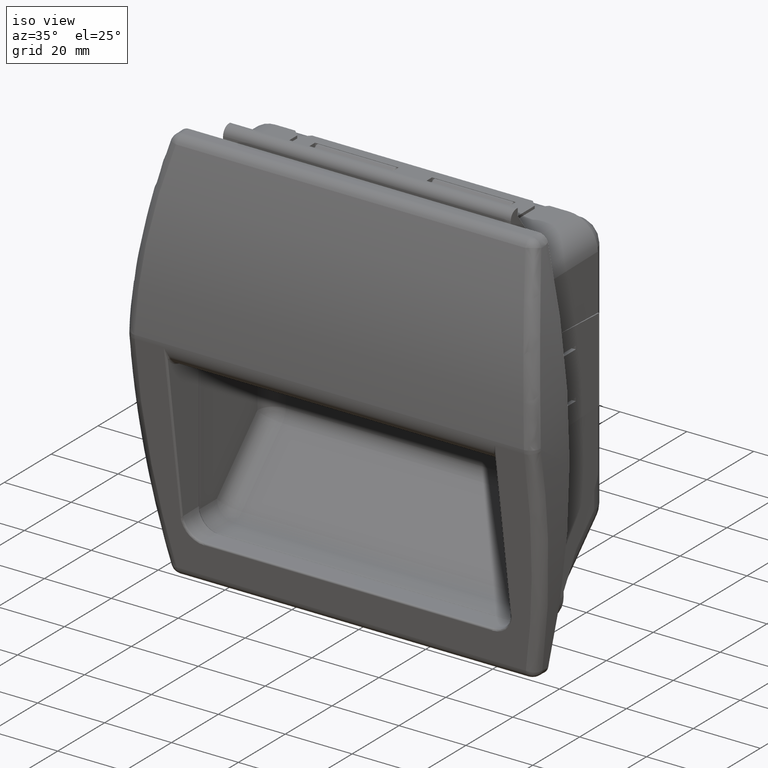
[diagram: clean part render]
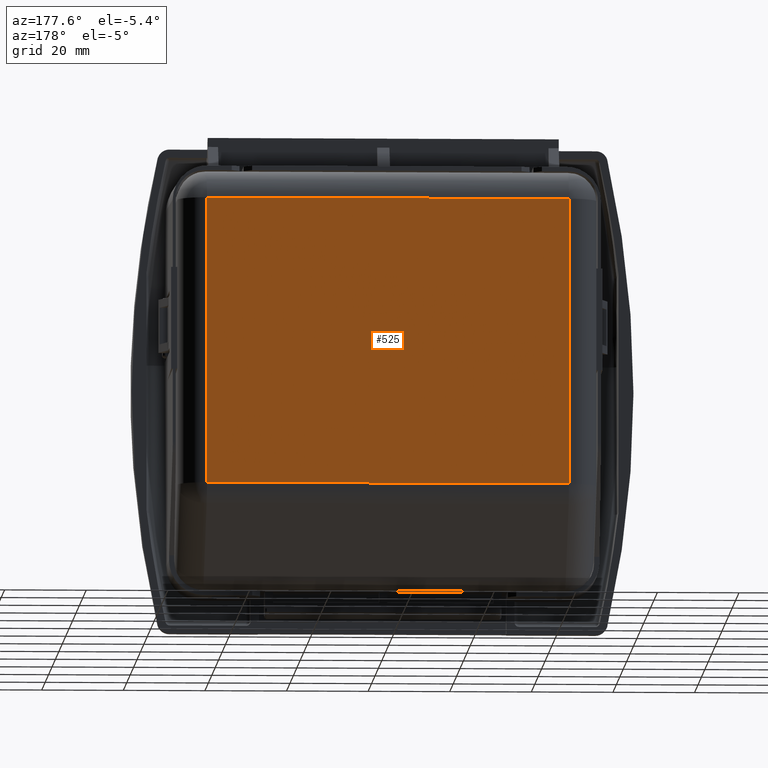
[diagram: tour spotlight — one face highlighted and labeled with its STEP entity id]
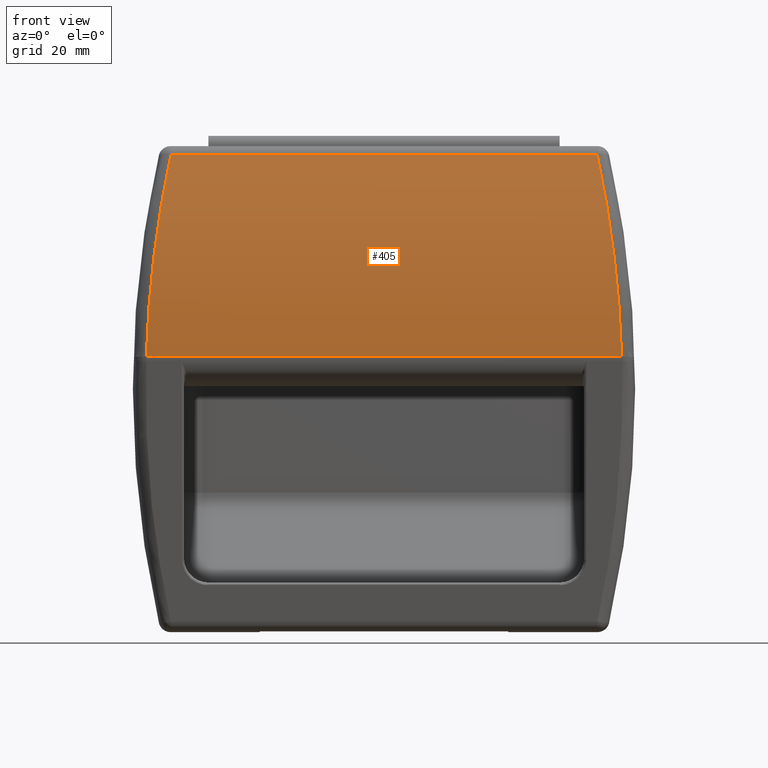
[diagram: tour spotlight — one face highlighted and labeled with its STEP entity id]
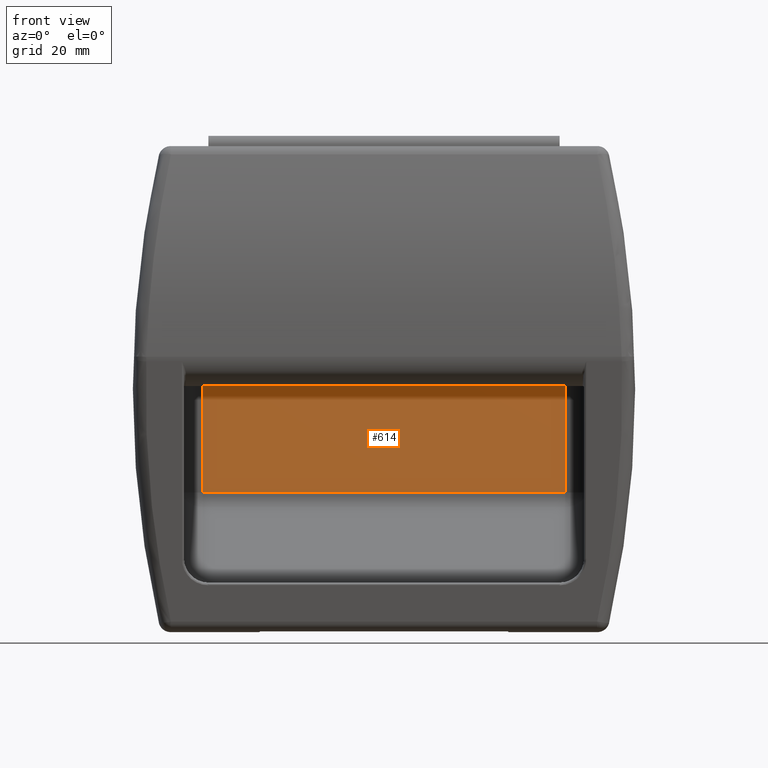
[diagram: tour spotlight — one face highlighted and labeled with its STEP entity id]
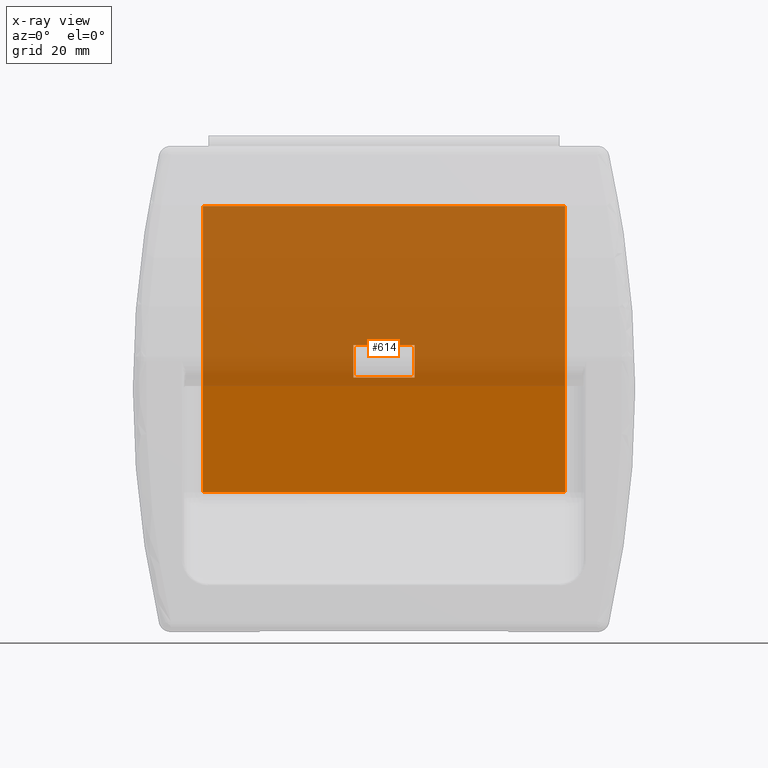
[diagram: x-ray of the same camera — body ghosted, this tour face saturated]
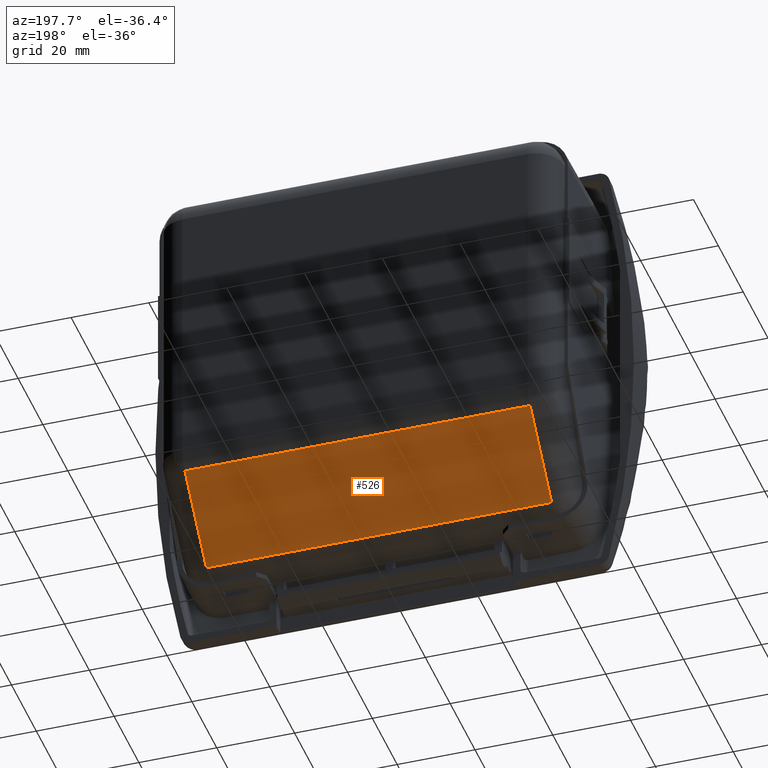
[diagram: tour spotlight — one face highlighted and labeled with its STEP entity id]
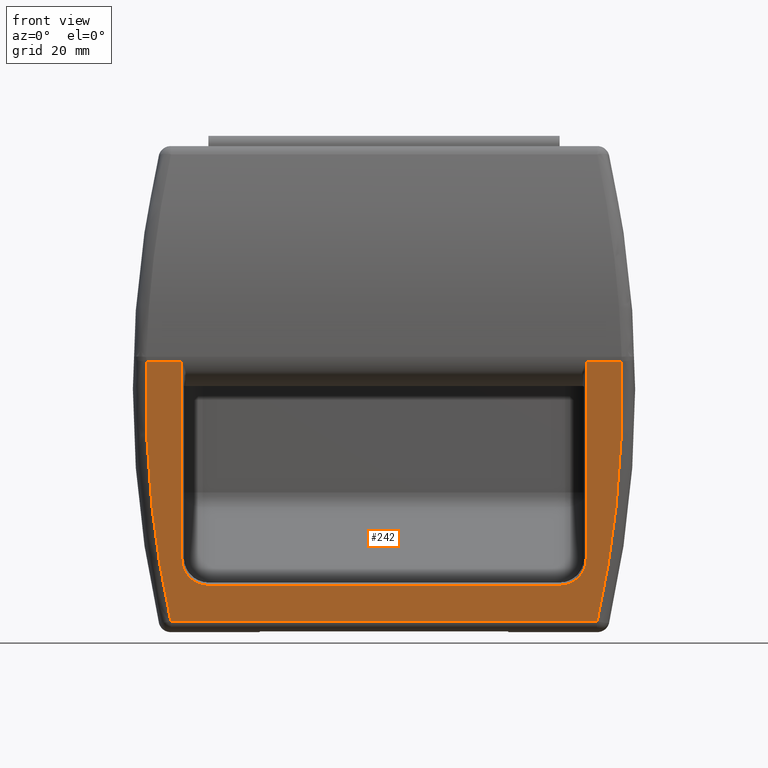
[diagram: tour spotlight — one face highlighted and labeled with its STEP entity id]
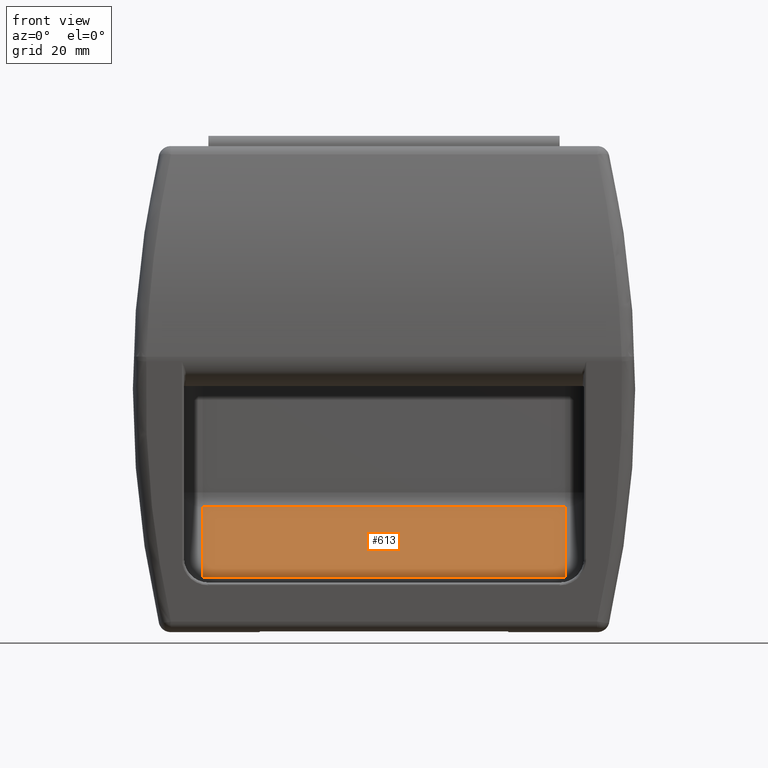
[diagram: tour spotlight — one face highlighted and labeled with its STEP entity id]
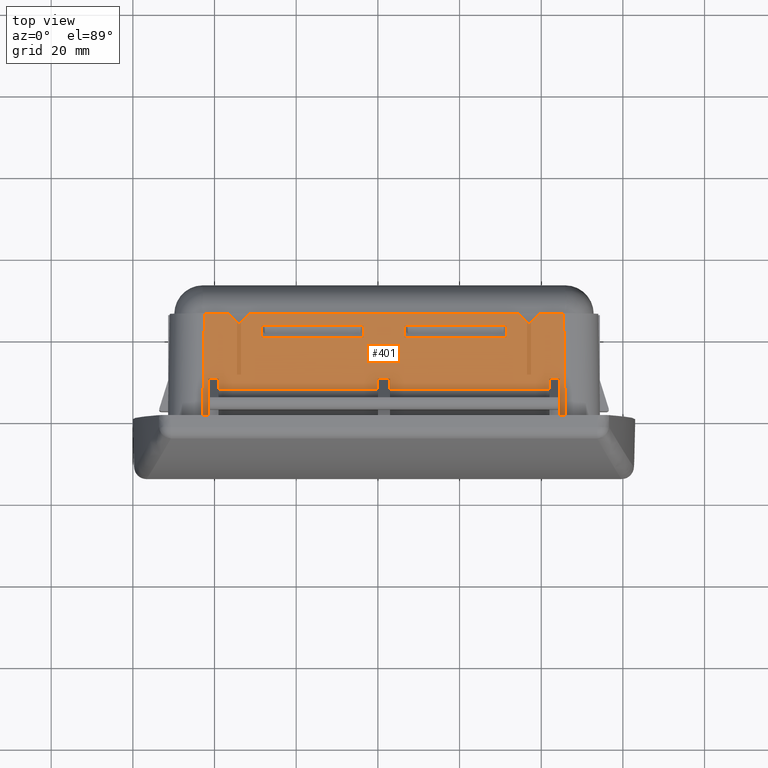
[diagram: tour spotlight — one face highlighted and labeled with its STEP entity id]
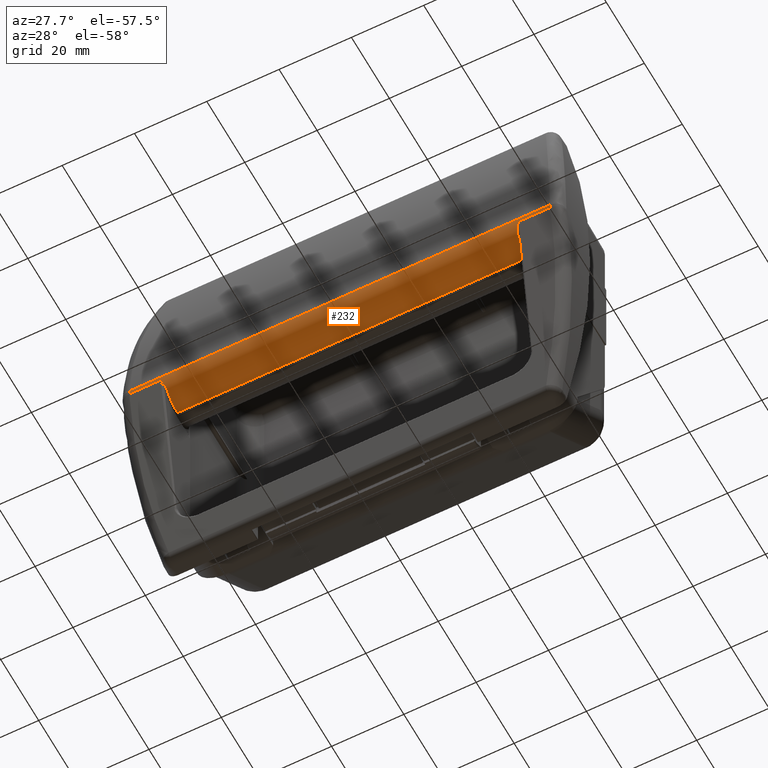
[diagram: tour spotlight — one face highlighted and labeled with its STEP entity id]
A machine part: a face-by-face anatomy tour. The part has 703 B-rep faces; the first image is the clean iso view, then the 8 largest visible faces are spotlighted one at a time (largest first), each with its STEP entity span.

Face 1 — auxiliary view, entity #525. In plain terms, the highlighted planar face has unit normal (0, 1, 0).
Definition (entity closure, byte-faithful):
#525=ADVANCED_FACE('',(#4624),#4623,.T.);
#4623=PLANE('',#11855);
#4624=FACE_OUTER_BOUND('',#11856,.T.);
#11852=CARTESIAN_POINT('',(-2.51720344491E+02,3.20000000000E+01,-3.23084886702E+01));
#11853=DIRECTION('',(0.00000000000E+00,1.00000000000E+00,0.00000000000E+00));
#11854=DIRECTION('',(0.00000000000E+00,0.00000000000E+00,1.00000000000E+00));
#11855=AXIS2_PLACEMENT_3D('',#11852,#11853,#11854);
#11856=EDGE_LOOP('',(#18280,#18281,#18282,#18283));
#18280=ORIENTED_EDGE('',*,*,#20889,.T.);
#18281=ORIENTED_EDGE('',*,*,#20927,.F.);
#18282=ORIENTED_EDGE('',*,*,#20895,.T.);
#18283=ORIENTED_EDGE('',*,*,#20899,.T.);
#20889=EDGE_CURVE('',#28354,#28347,#28355,.T.);
#20895=EDGE_CURVE('',#28392,#28393,#28394,.T.);
#20899=EDGE_CURVE('',#28393,#28354,#28420,.T.);
#20927=EDGE_CURVE('',#28392,#28347,#28603,.T.);
#28347=VERTEX_POINT('',#38044);
#28354=VERTEX_POINT('',#38049);
#28355=LINE('',#38050,#38051);
#28392=VERTEX_POINT('',#38072);
#28393=VERTEX_POINT('',#38073);
#28394=LINE('',#38074,#38075);
#28420=LINE('',#38090,#38091);
#28603=LINE('',#38200,#38201);
#38044=CARTESIAN_POINT('',(-1.54150344491E+02,3.20000000000E+01,4.47999999995E+01));
#38049=CARTESIAN_POINT('',(-2.42850344491E+02,3.20000000000E+01,4.47999999995E+01));
#38050=CARTESIAN_POINT('',(-2.42850344491E+02,3.20000000000E+01,4.47999999995E+01));
#38051=VECTOR('',#38052,8.87000000000E+01);
#38052=DIRECTION('',(1.00000000000E+00,0.00000000000E+00,0.00000000000E+00));
#38072=CARTESIAN_POINT('',(-1.54150344491E+02,3.20000000000E+01,-2.52986260639E+01));
#38073=CARTESIAN_POINT('',(-2.42850344491E+02,3.20000000000E+01,-2.52986260639E+01));
#38074=CARTESIAN_POINT('',(-1.54150344491E+02,3.20000000000E+01,-2.52986260639E+01));
#38075=VECTOR('',#38076,8.87000000000E+01);
#38076=DIRECTION('',(-1.00000000000E+00,0.00000000000E+00,0.00000000000E+00));
#38090=CARTESIAN_POINT('',(-2.42850344491E+02,3.20000000000E+01,-2.52986260639E+01));
#38091=VECTOR('',#38092,7.00986260634E+01);
#38092=DIRECTION('',(0.00000000000E+00,0.00000000000E+00,1.00000000000E+00));
#38200=CARTESIAN_POINT('',(-1.54150344491E+02,3.20000000000E+01,-2.52986260639E+01));
#38201=VECTOR('',#38202,7.00986260634E+01);
#38202=DIRECTION('',(0.00000000000E+00,0.00000000000E+00,1.00000000000E+00));

Face 2 — front view, entity #405. In plain terms, the highlighted cylindrical surface (partial cylindrical patch) has radius 155 mm, axis along (1, -0, 0).
Definition (entity closure, byte-faithful):
#405=ADVANCED_FACE('',(#3421),#3420,.T.);
#3420=CYLINDRICAL_SURFACE('',#10751,1.55000000000E+02);
#3421=FACE_OUTER_BOUND('',#10752,.T.);
#10748=CARTESIAN_POINT('',(-1.30309991273E+02,1.40175836261E+02,5.12569957722E+00));
#10749=DIRECTION('',(1.00000000000E+00,-2.71340391418E-14,4.72574873308E-16));
#10750=DIRECTION('',(2.71381483594E-14,9.99836847555E-01,-1.80631744447E-02));
#10751=AXIS2_PLACEMENT_3D('',#10748,#10749,#10750);
#10752=EDGE_LOOP('',(#17628,#17629,#17630,#17631));
#17628=ORIENTED_EDGE('',*,*,#20232,.T.);
#17629=ORIENTED_EDGE('',*,*,#20237,.T.);
#17630=ORIENTED_EDGE('',*,*,#20212,.T.);
#17631=ORIENTED_EDGE('',*,*,#20093,.F.);
#20093=EDGE_CURVE('',#23083,#23104,#23105,.T.);
#20212=EDGE_CURVE('',#23904,#23104,#23905,.T.);
#20232=EDGE_CURVE('',#23083,#24036,#24037,.T.);
#20237=EDGE_CURVE('',#24036,#23904,#24067,.T.);
#23083=VERTEX_POINT('',#34518);
#23104=VERTEX_POINT('',#34533);
#23105=(BOUNDED_CURVE() B_SPLINE_CURVE(3,(#34534,#34535,#34536,#34537,#34538,#34539,#34540,#34541),.UNSPECIFIED.,.F.,.F.) B_SPLINE_CURVE_WITH_KNOTS((4,2,2,4),(0.00000000000E+00,2.53678568101E-02,3.80517852151E-02,5.07357136201E-02),.UNSPECIFIED.) CURVE() GEOMETRIC_REPRESENTATION_ITEM() RATIONAL_B_SPLINE_CURVE((1.00000000000E+00,1.00000000000E+00,1.00000000000E+00,1.00000000000E+00,1.00000000000E+00,1.00000000000E+00,1.00000000000E+00,1.00000000000E+00)) REPRESENTATION_ITEM('') );
#23904=VERTEX_POINT('',#35204);
#23905=LINE('',#35205,#35206);
#24036=VERTEX_POINT('',#35298);
#24037=LINE('',#35299,#35300);
#24067=(BOUNDED_CURVE() B_SPLINE_CURVE(3,(#35319,#35320,#35321,#35322,#35323,#35324,#35325,#35326),.UNSPECIFIED.,.F.,.F.) B_SPLINE_CURVE_WITH_KNOTS((4,2,2,4),(0.00000000000E+00,2.53678568101E-02,3.80517852151E-02,5.07357136201E-02),.UNSPECIFIED.) CURVE() GEOMETRIC_REPRESENTATION_ITEM() RATIONAL_B_SPLINE_CURVE((1.00000000000E+00,1.00000000000E+00,1.00000000000E+00,1.00000000000E+00,1.00000000000E+00,1.00000000000E+00,1.00000000000E+00,1.00000000000E+00)) REPRESENTATION_ITEM('') );
#34518=CARTESIAN_POINT('',(-1.46314614773E+02,-5.71468372083E+00,5.74798415271E+01));
#34533=CARTESIAN_POINT('',(-1.40309991273E+02,-1.47988571204E+01,7.92648718228E+00));
#34534=CARTESIAN_POINT('',(-1.46314614773E+02,-5.71468372083E+00,5.74798415271E+01));
#34535=CARTESIAN_POINT('',(-1.44612936774E+02,-8.56037819157E+00,4.95500038755E+01));
#34536=CARTESIAN_POINT('',(-1.43242115937E+02,-1.07395444575E+01,4.14578859791E+01));
#34537=CARTESIAN_POINT('',(-1.41724674213E+02,-1.30205417211E+01,2.90733455913E+01));
#34538=CARTESIAN_POINT('',(-1.41308745328E+02,-1.36153939378E+01,2.49039376457E+01));
#34539=CARTESIAN_POINT('',(-1.40665395191E+02,-1.44656838514E+01,1.64800575288E+01));
#34540=CARTESIAN_POINT('',(-1.40437955353E+02,-1.47211612893E+01,1.22255948950E+01));
#34541=CARTESIAN_POINT('',(-1.40309991273E+02,-1.47988571204E+01,7.92648718228E+00));
#35204=CARTESIAN_POINT('',(-2.56690697709E+02,-1.47988571204E+01,7.92648718228E+00));
#35205=CARTESIAN_POINT('',(-2.56690697709E+02,-1.47988571204E+01,7.92648718228E+00));
#35206=VECTOR('',#35207,1.16380706436E+02);
#35207=DIRECTION('',(1.00000000000E+00,0.00000000000E+00,0.00000000000E+00));
#35298=CARTESIAN_POINT('',(-2.50686074209E+02,-5.71468372083E+00,5.74798415271E+01));
#35299=CARTESIAN_POINT('',(-1.46314614773E+02,-5.71468372083E+00,5.74798415271E+01));
#35300=VECTOR('',#35301,1.04371459436E+02);
#35301=DIRECTION('',(-1.00000000000E+00,0.00000000000E+00,0.00000000000E+00));
#35319=CARTESIAN_POINT('',(-2.50686074209E+02,-5.71468372083E+00,5.74798415271E+01));
#35320=CARTESIAN_POINT('',(-2.52387752208E+02,-8.56037819157E+00,4.95500038755E+01));
#35321=CARTESIAN_POINT('',(-2.53758573045E+02,-1.07395444575E+01,4.14578859791E+01));
#35322=CARTESIAN_POINT('',(-2.55276014769E+02,-1.30205417211E+01,2.90733455913E+01));
#35323=CARTESIAN_POINT('',(-2.55691943654E+02,-1.36153939378E+01,2.49039376457E+01));
#35324=CARTESIAN_POINT('',(-2.56335293791E+02,-1.44656838514E+01,1.64800575288E+01));
#35325=CARTESIAN_POINT('',(-2.56562733629E+02,-1.47211612893E+01,1.22255948950E+01));
#35326=CARTESIAN_POINT('',(-2.56690697709E+02,-1.47988571204E+01,7.92648718228E+00));

Face 3 — front view, entity #614. An x-ray twin of the same camera follows (body ghosted, this face saturated) — the face is partly hidden behind the body. In plain terms, the highlighted planar face has unit normal (0, -1, 0).
Definition (entity closure, byte-faithful):
#614=ADVANCED_FACE('',(#5518,#5519),#5517,.T.);
#5517=PLANE('',#12428);
#5518=FACE_OUTER_BOUND('',#12429,.T.);
#5519=FACE_BOUND('',#12430,.T.);
#12425=CARTESIAN_POINT('',(-2.51720344491E+02,3.00000000000E+01,-3.23084886702E+01));
#12426=DIRECTION('',(0.00000000000E+00,-1.00000000000E+00,0.00000000000E+00));
#12427=DIRECTION('',(1.00000000000E+00,0.00000000000E+00,0.00000000000E+00));
#12428=AXIS2_PLACEMENT_3D('',#12425,#12426,#12427);
#12429=EDGE_LOOP('',(#18697,#18698,#18699,#18700));
#12430=EDGE_LOOP('',(#18701,#18702,#18703,#18704));
#18697=ORIENTED_EDGE('',*,*,#20774,.F.);
#18698=ORIENTED_EDGE('',*,*,#21084,.T.);
#18699=ORIENTED_EDGE('',*,*,#21122,.F.);
#18700=ORIENTED_EDGE('',*,*,#20964,.F.);
#18701=ORIENTED_EDGE('',*,*,#21123,.T.);
#18702=ORIENTED_EDGE('',*,*,#20984,.F.);
#18703=ORIENTED_EDGE('',*,*,#21124,.T.);
#18704=ORIENTED_EDGE('',*,*,#21125,.T.);
#20774=EDGE_CURVE('',#27565,#27572,#27573,.T.);
#20964=EDGE_CURVE('',#27572,#27524,#28850,.T.);
#20984=EDGE_CURVE('',#28981,#28982,#28983,.T.);
#21084=EDGE_CURVE('',#27565,#27922,#29628,.T.);
#21122=EDGE_CURVE('',#27524,#27922,#29876,.T.);
#21123=EDGE_CURVE('',#29882,#28982,#29883,.T.);
#21124=EDGE_CURVE('',#28981,#29889,#29890,.T.);
#21125=EDGE_CURVE('',#29889,#29882,#29896,.T.);
#27524=VERTEX_POINT('',#37516);
#27565=VERTEX_POINT('',#37542);
#27572=VERTEX_POINT('',#37547);
#27573=LINE('',#37548,#37549);
#27922=VERTEX_POINT('',#37780);
#28850=LINE('',#38343,#38344);
#28981=VERTEX_POINT('',#38447);
#28982=VERTEX_POINT('',#38448);
#28983=LINE('',#38449,#38450);
#29628=LINE('',#38825,#38826);
#29876=LINE('',#38978,#38979);
#29882=VERTEX_POINT('',#38981);
#29883=LINE('',#38982,#38983);
#29889=VERTEX_POINT('',#38985);
#29890=LINE('',#38986,#38987);
#29896=LINE('',#38989,#38990);
#37516=CARTESIAN_POINT('',(-2.42850344491E+02,3.00000000000E+01,4.47999999995E+01));
#37542=CARTESIAN_POINT('',(-1.54150344491E+02,3.00000000000E+01,-2.52986260639E+01));
#37547=CARTESIAN_POINT('',(-2.42850344491E+02,3.00000000000E+01,-2.52986260639E+01));
#37548=CARTESIAN_POINT('',(-1.54150344491E+02,3.00000000000E+01,-2.52986260639E+01));
#37549=VECTOR('',#37550,8.87000000000E+01);
#37550=DIRECTION('',(-1.00000000000E+00,0.00000000000E+00,0.00000000000E+00));
#37780=CARTESIAN_POINT('',(-1.54150344491E+02,3.00000000000E+01,4.47999999995E+01));
#38343=CARTESIAN_POINT('',(-2.42850344491E+02,3.00000000000E+01,-2.52986260639E+01));
#38344=VECTOR('',#38345,7.00986260634E+01);
#38345=DIRECTION('',(0.00000000000E+00,0.00000000000E+00,1.00000000000E+00));
#38447=CARTESIAN_POINT('',(-1.91002273572E+02,3.00000000000E+01,2.79844390646E+00));
#38448=CARTESIAN_POINT('',(-1.91002273572E+02,3.00000000000E+01,1.07983716437E+01));
#38449=CARTESIAN_POINT('',(-1.91002273572E+02,3.00000000000E+01,2.79844390646E+00));
#38450=VECTOR('',#38451,7.99992773723E+00);
#38451=DIRECTION('',(0.00000000000E+00,0.00000000000E+00,1.00000000000E+00));
#38825=CARTESIAN_POINT('',(-1.54150344491E+02,3.00000000000E+01,-2.52986260639E+01));
#38826=VECTOR('',#38827,7.00986260634E+01);
#38827=DIRECTION('',(0.00000000000E+00,0.00000000000E+00,1.00000000000E+00));
#38978=CARTESIAN_POINT('',(-2.42850344491E+02,3.00000000000E+01,4.47999999995E+01));
#38979=VECTOR('',#38980,8.87000000000E+01);
#38980=DIRECTION('',(1.00000000000E+00,0.00000000000E+00,0.00000000000E+00));
#38981=CARTESIAN_POINT('',(-2.05998415409E+02,3.00000000000E+01,1.07983716437E+01));
#38982=CARTESIAN_POINT('',(-2.05998415409E+02,3.00000000000E+01,1.07983716437E+01));
#38983=VECTOR('',#38984,1.49961418368E+01);
#38984=DIRECTION('',(1.00000000000E+00,0.00000000000E+00,0.00000000000E+00));
#38985=CARTESIAN_POINT('',(-2.05998415409E+02,3.00000000000E+01,2.79844390646E+00));
#38986=CARTESIAN_POINT('',(-1.91002273572E+02,3.00000000000E+01,2.79844390646E+00));
#38987=VECTOR('',#38988,1.49961418368E+01);
#38988=DIRECTION('',(-1.00000000000E+00,0.00000000000E+00,0.00000000000E+00));
#38989=CARTESIAN_POINT('',(-2.05998415409E+02,3.00000000000E+01,2.79844390646E+00));
#38990=VECTOR('',#38991,7.99992773723E+00);
#38991=DIRECTION('',(0.00000000000E+00,0.00000000000E+00,1.00000000000E+00));

Face 4 — auxiliary view, entity #526. In plain terms, the highlighted planar face has unit normal (0, 0.7071, -0.7071).
Definition (entity closure, byte-faithful):
#526=ADVANCED_FACE('',(#4634),#4633,.T.);
#4633=PLANE('',#11860);
#4634=FACE_OUTER_BOUND('',#11861,.T.);
#11857=CARTESIAN_POINT('',(-2.51720344491E+02,1.09203030380E+01,-4.92778179625E+01));
#11858=DIRECTION('',(0.00000000000E+00,7.07106781187E-01,-7.07106781187E-01));
#11859=DIRECTION('',(0.00000000000E+00,7.07106781187E-01,7.07106781187E-01));
#11860=AXIS2_PLACEMENT_3D('',#11857,#11858,#11859);
#11861=EDGE_LOOP('',(#18284,#18285,#18286,#18287));
#18284=ORIENTED_EDGE('',*,*,#20897,.T.);
#18285=ORIENTED_EDGE('',*,*,#20928,.F.);
#18286=ORIENTED_EDGE('',*,*,#20903,.T.);
#18287=ORIENTED_EDGE('',*,*,#20907,.T.);
#20897=EDGE_CURVE('',#28407,#28400,#28408,.T.);
#20903=EDGE_CURVE('',#28445,#28446,#28447,.T.);
#20907=EDGE_CURVE('',#28446,#28407,#28473,.T.);
#20928=EDGE_CURVE('',#28445,#28400,#28609,.T.);
#28400=VERTEX_POINT('',#38077);
#28407=VERTEX_POINT('',#38082);
#28408=LINE('',#38083,#38084);
#28445=VERTEX_POINT('',#38105);
#28446=VERTEX_POINT('',#38106);
#28447=LINE('',#38107,#38108);
#28473=LINE('',#38123,#38124);
#28609=LINE('',#38203,#38204);
#38077=CARTESIAN_POINT('',(-1.54150344491E+02,2.99497474683E+01,-3.02483735322E+01));
#38082=CARTESIAN_POINT('',(-2.42850344491E+02,2.99497474683E+01,-3.02483735322E+01));
#38083=CARTESIAN_POINT('',(-2.42850344491E+02,2.99497474683E+01,-3.02483735322E+01));
#38084=VECTOR('',#38085,8.87000000000E+01);
#38085=DIRECTION('',(1.00000000000E+00,0.00000000000E+00,0.00000000000E+00));
#38105=CARTESIAN_POINT('',(-1.54150344491E+02,1.26502525317E+01,-4.75478684688E+01));
#38106=CARTESIAN_POINT('',(-2.42850344491E+02,1.26502525317E+01,-4.75478684688E+01));
#38107=CARTESIAN_POINT('',(-1.54150344491E+02,1.26502525317E+01,-4.75478684688E+01));
#38108=VECTOR('',#38109,8.87000000000E+01);
#38109=DIRECTION('',(-1.00000000000E+00,0.00000000000E+00,0.00000000000E+00));
#38123=CARTESIAN_POINT('',(-2.42850344491E+02,1.26502525317E+01,-4.75478684688E+01));
#38124=VECTOR('',#38125,2.44651803616E+01);
#38125=DIRECTION('',(0.00000000000E+00,7.07106781187E-01,7.07106781187E-01));
#38203=CARTESIAN_POINT('',(-1.54150344491E+02,1.26502525317E+01,-4.75478684688E+01));
#38204=VECTOR('',#38205,2.44651803616E+01);
#38205=DIRECTION('',(0.00000000000E+00,7.07106781187E-01,7.07106781187E-01));

Face 5 — front view, entity #242. In plain terms, the highlighted planar face has unit normal (0, -0.9894, -0.1452).
Definition (entity closure, byte-faithful):
#242=ADVANCED_FACE('',(#1783),#1782,.T.);
#1782=PLANE('',#9738);
#1783=FACE_OUTER_BOUND('',#9739,.T.);
#9735=CARTESIAN_POINT('',(-2.67699424628E+02,-1.56604692049E+01,1.31531344708E+01));
#9736=DIRECTION('',(0.00000000000E+00,-9.89404774411E-01,-1.45183306107E-01));
#9737=DIRECTION('',(0.00000000000E+00,1.45183306107E-01,-9.89404774411E-01));
#9738=AXIS2_PLACEMENT_3D('',#9735,#9736,#9737);
#9739=EDGE_LOOP('',(#16738,#16739,#16740,#16741,#16742,#16743,#16744,#16745,#16746,#16747));
#16738=ORIENTED_EDGE('',*,*,#20230,.T.);
#16739=ORIENTED_EDGE('',*,*,#20083,.F.);
#16740=ORIENTED_EDGE('',*,*,#20210,.T.);
#16741=ORIENTED_EDGE('',*,*,#20241,.F.);
#16742=ORIENTED_EDGE('',*,*,#20086,.F.);
#16743=ORIENTED_EDGE('',*,*,#20242,.T.);
#16744=ORIENTED_EDGE('',*,*,#20238,.T.);
#16745=ORIENTED_EDGE('',*,*,#20221,.T.);
#16746=ORIENTED_EDGE('',*,*,#20208,.F.);
#16747=ORIENTED_EDGE('',*,*,#20219,.T.);
#20083=EDGE_CURVE('',#23027,#23035,#23036,.T.);
#20086=EDGE_CURVE('',#23055,#23056,#23057,.T.);
#20208=EDGE_CURVE('',#23879,#23866,#23880,.T.);
#20210=EDGE_CURVE('',#23027,#23014,#23892,.T.);
#20219=EDGE_CURVE('',#23879,#23944,#23951,.T.);
#20221=EDGE_CURVE('',#23964,#23866,#23965,.T.);
#20230=EDGE_CURVE('',#23944,#23035,#24024,.T.);
#20238=EDGE_CURVE('',#24073,#23964,#24074,.T.);
#20241=EDGE_CURVE('',#23056,#23014,#24093,.T.);
#20242=EDGE_CURVE('',#23055,#24073,#24099,.T.);
#23014=VERTEX_POINT('',#34454);
#23027=VERTEX_POINT('',#34475);
#23035=VERTEX_POINT('',#34481);
#23036=(BOUNDED_CURVE() B_SPLINE_CURVE(2,(#34482,#34483,#34484),.UNSPECIFIED.,.F.,.F.) B_SPLINE_CURVE_WITH_KNOTS((3,3),(-1.60147133436E+00,-1.35171919867E+00),.UNSPECIFIED.) CURVE() GEOMETRIC_REPRESENTATION_ITEM() RATIONAL_B_SPLINE_CURVE((1.00000000000E+00,9.92213110818E-01,1.00000000000E+00)) REPRESENTATION_ITEM('') );
#23055=VERTEX_POINT('',#34500);
#23056=VERTEX_POINT('',#34501);
#23057=(BOUNDED_CURVE() B_SPLINE_CURVE(2,(#34502,#34503,#34504),.UNSPECIFIED.,.F.,.F.) B_SPLINE_CURVE_WITH_KNOTS((3,3),(-3.14159265359E+00,-1.57079632679E+00),.UNSPECIFIED.) CURVE() GEOMETRIC_REPRESENTATION_ITEM() RATIONAL_B_SPLINE_CURVE((1.00000000000E+00,7.07106781187E-01,1.00000000000E+00)) REPRESENTATION_ITEM('') );
#23866=VERTEX_POINT('',#35169);
#23879=VERTEX_POINT('',#35190);
#23880=LINE('',#35191,#35192);
#23892=LINE('',#35197,#35198);
#23944=VERTEX_POINT('',#35237);
#23951=(BOUNDED_CURVE() B_SPLINE_CURVE(2,(#35242,#35243,#35244),.UNSPECIFIED.,.F.,.F.) B_SPLINE_CURVE_WITH_KNOTS((3,3),(-1.60147133436E+00,-1.35171919867E+00),.UNSPECIFIED.) CURVE() GEOMETRIC_REPRESENTATION_ITEM() RATIONAL_B_SPLINE_CURVE((1.00000000000E+00,9.92213110818E-01,1.00000000000E+00)) REPRESENTATION_ITEM('') );
#23964=VERTEX_POINT('',#35249);
#23965=LINE('',#35250,#35251);
#24024=LINE('',#35292,#35293);
#24073=VERTEX_POINT('',#35327);
#24074=(BOUNDED_CURVE() B_SPLINE_CURVE(2,(#35328,#35329,#35330),.UNSPECIFIED.,.F.,.F.) B_SPLINE_CURVE_WITH_KNOTS((3,3),(-3.14159265359E+00,-1.57079632679E+00),.UNSPECIFIED.) CURVE() GEOMETRIC_REPRESENTATION_ITEM() RATIONAL_B_SPLINE_CURVE((1.00000000000E+00,7.07106781187E-01,1.00000000000E+00)) REPRESENTATION_ITEM('') );
#24093=LINE('',#35339,#35340);
#24099=LINE('',#35342,#35343);
#34454=CARTESIAN_POINT('',(-1.49000344491E+02,-1.47258334208E+01,6.78371685737E+00));
#34475=CARTESIAN_POINT('',(-1.40290067175E+02,-1.47258334208E+01,6.78371685737E+00));
#34481=CARTESIAN_POINT('',(-1.46307917439E+02,-5.37947558005E+00,-5.69104592773E+01));
#34482=CARTESIAN_POINT('',(-1.40290067175E+02,-1.47258334208E+01,6.78371685737E+00));
#34483=CARTESIAN_POINT('',(-1.39301264354E+02,-9.99723017459E+00,-2.54410805627E+01));
#34484=CARTESIAN_POINT('',(-1.46307917439E+02,-5.37947558005E+00,-5.69104592773E+01));
#34500=CARTESIAN_POINT('',(-1.55500344491E+02,-6.67798913457E+00,-4.80612634232E+01));
#34501=CARTESIAN_POINT('',(-1.49000344491E+02,-7.62949449922E+00,-4.15768818788E+01));
#34502=CARTESIAN_POINT('',(-1.55500344491E+02,-6.67798913457E+00,-4.80612634232E+01));
#34503=CARTESIAN_POINT('',(-1.49000344491E+02,-6.67798913457E+00,-4.80612634232E+01));
#34504=CARTESIAN_POINT('',(-1.49000344491E+02,-7.62949449922E+00,-4.15768818788E+01));
#35169=CARTESIAN_POINT('',(-2.48000344491E+02,-1.47258334208E+01,6.78371685737E+00));
#35190=CARTESIAN_POINT('',(-2.56710621807E+02,-1.47258334208E+01,6.78371685737E+00));
#35191=CARTESIAN_POINT('',(-2.56710621807E+02,-1.47258334208E+01,6.78371685737E+00));
#35192=VECTOR('',#35193,8.71027731590E+00);
#35193=DIRECTION('',(1.00000000000E+00,0.00000000000E+00,0.00000000000E+00));
#35197=CARTESIAN_POINT('',(-1.40290067175E+02,-1.47258334208E+01,6.78371685737E+00));
#35198=VECTOR('',#35199,8.71027731590E+00);
#35199=DIRECTION('',(-1.00000000000E+00,0.00000000000E+00,0.00000000000E+00));
#35237=CARTESIAN_POINT('',(-2.50692771543E+02,-5.37947558005E+00,-5.69104592773E+01));
#35242=CARTESIAN_POINT('',(-2.56710621807E+02,-1.47258334208E+01,6.78371685737E+00));
#35243=CARTESIAN_POINT('',(-2.57699424628E+02,-9.99723017459E+00,-2.54410805627E+01));
#35244=CARTESIAN_POINT('',(-2.50692771543E+02,-5.37947558005E+00,-5.69104592773E+01));
#35249=CARTESIAN_POINT('',(-2.48000344491E+02,-7.62949449922E+00,-4.15768818788E+01));
#35250=CARTESIAN_POINT('',(-2.48000344491E+02,-7.62949449922E+00,-4.15768818788E+01));
#35251=VECTOR('',#35252,4.88784772289E+01);
#35252=DIRECTION('',(0.00000000000E+00,-1.45183306107E-01,9.89404774411E-01));
#35292=CARTESIAN_POINT('',(-2.50692771543E+02,-5.37947558005E+00,-5.69104592773E+01));
#35293=VECTOR('',#35294,1.04384854105E+02);
#35294=DIRECTION('',(1.00000000000E+00,0.00000000000E+00,0.00000000000E+00));
#35327=CARTESIAN_POINT('',(-2.41500344491E+02,-6.67798913457E+00,-4.80612634232E+01));
#35328=CARTESIAN_POINT('',(-2.41500344491E+02,-6.67798913457E+00,-4.80612634232E+01));
#35329=CARTESIAN_POINT('',(-2.48000344491E+02,-6.67798913457E+00,-4.80612634232E+01));
#35330=CARTESIAN_POINT('',(-2.48000344491E+02,-7.62949449922E+00,-4.15768818788E+01));
#35339=CARTESIAN_POINT('',(-1.49000344491E+02,-7.62949449922E+00,-4.15768818788E+01));
#35340=VECTOR('',#35341,4.88784772289E+01);
#35341=DIRECTION('',(0.00000000000E+00,-1.45183306107E-01,9.89404774411E-01));
#35342=CARTESIAN_POINT('',(-1.55500344491E+02,-6.67798913457E+00,-4.80612634232E+01));
#35343=VECTOR('',#35344,8.59999999994E+01);
#35344=DIRECTION('',(-1.00000000000E+00,0.00000000000E+00,0.00000000000E+00));

Face 6 — front view, entity #613. In plain terms, the highlighted planar face has unit normal (0, -0.7071, 0.7071).
Definition (entity closure, byte-faithful):
#613=ADVANCED_FACE('',(#5508),#5507,.T.);
#5507=PLANE('',#12423);
#5508=FACE_OUTER_BOUND('',#12424,.T.);
#12420=CARTESIAN_POINT('',(-2.51720344491E+02,9.50608947564E+00,-4.78636044001E+01));
#12421=DIRECTION('',(0.00000000000E+00,-7.07106781187E-01,7.07106781187E-01));
#12422=DIRECTION('',(1.00000000000E+00,0.00000000000E+00,0.00000000000E+00));
#12423=AXIS2_PLACEMENT_3D('',#12420,#12421,#12422);
#12424=EDGE_LOOP('',(#18693,#18694,#18695,#18696));
#18693=ORIENTED_EDGE('',*,*,#20967,.F.);
#18694=ORIENTED_EDGE('',*,*,#21081,.T.);
#18695=ORIENTED_EDGE('',*,*,#20772,.F.);
#18696=ORIENTED_EDGE('',*,*,#20959,.F.);
#20772=EDGE_CURVE('',#27557,#27558,#27559,.T.);
#20959=EDGE_CURVE('',#28793,#27557,#28819,.T.);
#20967=EDGE_CURVE('',#28863,#28793,#28870,.T.);
#21081=EDGE_CURVE('',#28863,#27558,#29610,.T.);
#27557=VERTEX_POINT('',#37537);
#27558=VERTEX_POINT('',#37538);
#27559=LINE('',#37539,#37540);
#28793=VERTEX_POINT('',#38307);
#28819=LINE('',#38324,#38325);
#28863=VERTEX_POINT('',#38350);
#28870=LINE('',#38355,#38356);
#29610=LINE('',#38815,#38816);
#37537=CARTESIAN_POINT('',(-2.42850344491E+02,2.85355339059E+01,-2.88341599698E+01));
#37538=CARTESIAN_POINT('',(-1.54150344491E+02,2.85355339059E+01,-2.88341599698E+01));
#37539=CARTESIAN_POINT('',(-2.42850344491E+02,2.85355339059E+01,-2.88341599698E+01));
#37540=VECTOR('',#37541,8.87000000000E+01);
#37541=DIRECTION('',(1.00000000000E+00,0.00000000000E+00,0.00000000000E+00));
#38307=CARTESIAN_POINT('',(-2.42850344491E+02,1.12360389693E+01,-4.61336549064E+01));
#38324=CARTESIAN_POINT('',(-2.42850344491E+02,1.12360389693E+01,-4.61336549064E+01));
#38325=VECTOR('',#38326,2.44651803616E+01);
#38326=DIRECTION('',(0.00000000000E+00,7.07106781187E-01,7.07106781187E-01));
#38350=CARTESIAN_POINT('',(-1.54150344491E+02,1.12360389693E+01,-4.61336549064E+01));
#38355=CARTESIAN_POINT('',(-1.54150344491E+02,1.12360389693E+01,-4.61336549064E+01));
#38356=VECTOR('',#38357,8.87000000000E+01);
#38357=DIRECTION('',(-1.00000000000E+00,0.00000000000E+00,0.00000000000E+00));
#38815=CARTESIAN_POINT('',(-1.54150344491E+02,1.12360389693E+01,-4.61336549064E+01));
#38816=VECTOR('',#38817,2.44651803616E+01);
#38817=DIRECTION('',(0.00000000000E+00,7.07106781187E-01,7.07106781187E-01));

Face 7 — top view, entity #401. In plain terms, the highlighted planar face has unit normal (0, 0, 1).
Definition (entity closure, byte-faithful):
#401=ADVANCED_FACE('',(#3379,#3380,#3381),#3378,.T.);
#3378=PLANE('',#10729);
#3379=FACE_OUTER_BOUND('',#10730,.T.);
#3380=FACE_BOUND('',#10731,.T.);
#3381=FACE_BOUND('',#10732,.T.);
#10726=CARTESIAN_POINT('',(-1.45280344490E+02,-7.46668504572E+00,5.32999999995E+01));
#10727=DIRECTION('',(0.00000000000E+00,-0.00000000000E+00,1.00000000000E+00));
#10728=DIRECTION('',(0.00000000000E+00,1.00000000000E+00,0.00000000000E+00));
#10729=AXIS2_PLACEMENT_3D('',#10726,#10727,#10728);
#10730=EDGE_LOOP('',(#17578,#17579,#17580,#17581,#17582,#17583,#17584,#17585,#17586,#17587,#17588,#17589,#17590,#17591,#17592,#17593,#17594,#17595,#17596,#17597,#17598,#17599,#17600,#17601,#17602,#17603,#17604,#17605,#17606,#17607));
#10731=EDGE_LOOP('',(#17608,#17609,#17610,#17611));
#10732=EDGE_LOOP('',(#17612,#17613,#17614,#17615));
#17578=ORIENTED_EDGE('',*,*,#20502,.T.);
#17579=ORIENTED_EDGE('',*,*,#20412,.T.);
#17580=ORIENTED_EDGE('',*,*,#20503,.T.);
#17581=ORIENTED_EDGE('',*,*,#20681,.T.);
#17582=ORIENTED_EDGE('',*,*,#20546,.F.);
#17583=ORIENTED_EDGE('',*,*,#20506,.F.);
#17584=ORIENTED_EDGE('',*,*,#20682,.F.);
#17585=ORIENTED_EDGE('',*,*,#20549,.F.);
#17586=ORIENTED_EDGE('',*,*,#20683,.T.);
#17587=ORIENTED_EDGE('',*,*,#20684,.T.);
#17588=ORIENTED_EDGE('',*,*,#20523,.F.);
#17589=ORIENTED_EDGE('',*,*,#20526,.F.);
#17590=ORIENTED_EDGE('',*,*,#20652,.T.);
#17591=ORIENTED_EDGE('',*,*,#20533,.F.);
#17592=ORIENTED_EDGE('',*,*,#20607,.T.);
#17593=ORIENTED_EDGE('',*,*,#20610,.T.);
#17594=ORIENTED_EDGE('',*,*,#20608,.T.);
#17595=ORIENTED_EDGE('',*,*,#20530,.F.);
#17596=ORIENTED_EDGE('',*,*,#20285,.F.);
#17597=ORIENTED_EDGE('',*,*,#20434,.T.);
#17598=ORIENTED_EDGE('',*,*,#20361,.F.);
#17599=ORIENTED_EDGE('',*,*,#20358,.F.);
#17600=ORIENTED_EDGE('',*,*,#20364,.F.);
#17601=ORIENTED_EDGE('',*,*,#20436,.T.);
#17602=ORIENTED_EDGE('',*,*,#20685,.F.);
#17603=ORIENTED_EDGE('',*,*,#20427,.T.);
#17604=ORIENTED_EDGE('',*,*,#20424,.T.);
#17605=ORIENTED_EDGE('',*,*,#20686,.F.);
#17606=ORIENTED_EDGE('',*,*,#20146,.F.);
#17607=ORIENTED_EDGE('',*,*,#20486,.T.);
#17608=ORIENTED_EDGE('',*,*,#20372,.T.);
#17609=ORIENTED_EDGE('',*,*,#20367,.T.);
#17610=ORIENTED_EDGE('',*,*,#20369,.T.);
#17611=ORIENTED_EDGE('',*,*,#20371,.T.);
#17612=ORIENTED_EDGE('',*,*,#20599,.F.);
#17613=ORIENTED_EDGE('',*,*,#20602,.F.);
#17614=ORIENTED_EDGE('',*,*,#20604,.F.);
#17615=ORIENTED_EDGE('',*,*,#20605,.F.);
#20146=EDGE_CURVE('',#23453,#23460,#23461,.T.);
#20285=EDGE_CURVE('',#24373,#24380,#24381,.T.);
#20358=EDGE_CURVE('',#24873,#24874,#24875,.T.);
#20361=EDGE_CURVE('',#24874,#24893,#24894,.T.);
#20364=EDGE_CURVE('',#24906,#24873,#24913,.T.);
#20367=EDGE_CURVE('',#24919,#24926,#24933,.T.);
#20369=EDGE_CURVE('',#24926,#24939,#24946,.T.);
#20371=EDGE_CURVE('',#24939,#24952,#24959,.T.);
#20372=EDGE_CURVE('',#24952,#24919,#24965,.T.);
#20412=EDGE_CURVE('',#25207,#25221,#25228,.T.);
#20424=EDGE_CURVE('',#25308,#25300,#25309,.T.);
#20427=EDGE_CURVE('',#25328,#25308,#25329,.T.);
#20434=EDGE_CURVE('',#24373,#24893,#25373,.T.);
#20436=EDGE_CURVE('',#24906,#25379,#25386,.T.);
#20486=EDGE_CURVE('',#23453,#25704,#25711,.T.);
#20502=EDGE_CURVE('',#25704,#25207,#25815,.T.);
#20503=EDGE_CURVE('',#25221,#25821,#25822,.T.);
#20506=EDGE_CURVE('',#25834,#25841,#25842,.T.);
#20523=EDGE_CURVE('',#25948,#25933,#25955,.T.);
#20526=EDGE_CURVE('',#25968,#25948,#25975,.T.);
#20530=EDGE_CURVE('',#24380,#26000,#26001,.T.);
#20533=EDGE_CURVE('',#26013,#26020,#26021,.T.);
#20546=EDGE_CURVE('',#25841,#26102,#26103,.T.);
#20549=EDGE_CURVE('',#26115,#26122,#26123,.T.);
#20599=EDGE_CURVE('',#26448,#26455,#26456,.T.);
#20602=EDGE_CURVE('',#26468,#26448,#26475,.T.);
#20604=EDGE_CURVE('',#26481,#26468,#26488,.T.);
#20605=EDGE_CURVE('',#26455,#26481,#26494,.T.);
#20607=EDGE_CURVE('',#26013,#26500,#26507,.T.);
#20608=EDGE_CURVE('',#26513,#26000,#26514,.T.);
#20610=EDGE_CURVE('',#26500,#26513,#26526,.T.);
#20652=EDGE_CURVE('',#25968,#26020,#26802,.T.);
#20681=EDGE_CURVE('',#25821,#26102,#26985,.T.);
#20682=EDGE_CURVE('',#26122,#25834,#26991,.T.);
#20683=EDGE_CURVE('',#26115,#26997,#26998,.T.);
#20684=EDGE_CURVE('',#26997,#25933,#27004,.T.);
#20685=EDGE_CURVE('',#25328,#25379,#27010,.T.);
#20686=EDGE_CURVE('',#23460,#25300,#27016,.T.);
#23453=VERTEX_POINT('',#34816);
#23460=VERTEX_POINT('',#34820);
#23461=LINE('',#34821,#34822);
#24373=VERTEX_POINT('',#35496);
#24380=VERTEX_POINT('',#35500);
#24381=LINE('',#35501,#35502);
#24873=VERTEX_POINT('',#35776);
#24874=VERTEX_POINT('',#35777);
#24875=LINE('',#35778,#35779);
#24893=VERTEX_POINT('',#35787);
#24894=LINE('',#35788,#35789);
#24906=VERTEX_POINT('',#35794);
#24913=LINE('',#35798,#35799);
#24919=VERTEX_POINT('',#35801);
#24926=VERTEX_POINT('',#35805);
#24933=LINE('',#35809,#35810);
#24939=VERTEX_POINT('',#35812);
#24946=LINE('',#35816,#35817);
#24952=VERTEX_POINT('',#35819);
#24959=LINE('',#35823,#35824);
#24965=LINE('',#35826,#35827);
#25207=VERTEX_POINT('',#35959);
#25221=VERTEX_POINT('',#35968);
#25228=LINE('',#35973,#35974);
#25300=VERTEX_POINT('',#36017);
#25308=VERTEX_POINT('',#36045);
#25309=LINE('',#36046,#36047);
#25328=VERTEX_POINT('',#36056);
#25329=LINE('',#36057,#36058);
#25373=LINE('',#36091,#36092);
#25379=VERTEX_POINT('',#36094);
#25386=LINE('',#36098,#36099);
#25704=VERTEX_POINT('',#36333);
#25711=LINE('',#36337,#36338);
#25815=LINE('',#36394,#36395);
#25821=VERTEX_POINT('',#36397);
#25822=LINE('',#36398,#36399);
#25834=VERTEX_POINT('',#36404);
#25841=VERTEX_POINT('',#36409);
#25842=LINE('',#36410,#36411);
#25933=VERTEX_POINT('',#36465);
#25948=VERTEX_POINT('',#36497);
#25955=LINE('',#36501,#36502);
#25968=VERTEX_POINT('',#36508);
#25975=LINE('',#36512,#36513);
#26000=VERTEX_POINT('',#36525);
#26001=LINE('',#36526,#36527);
#26013=VERTEX_POINT('',#36532);
#26020=VERTEX_POINT('',#36536);
#26021=LINE('',#36537,#36538);
#26102=VERTEX_POINT('',#36581);
#26103=LINE('',#36582,#36583);
#26115=VERTEX_POINT('',#36588);
#26122=VERTEX_POINT('',#36592);
#26123=LINE('',#36593,#36594);
#26448=VERTEX_POINT('',#36775);
#26455=VERTEX_POINT('',#36779);
#26456=LINE('',#36780,#36781);
#26468=VERTEX_POINT('',#36786);
#26475=LINE('',#36790,#36791);
#26481=VERTEX_POINT('',#36793);
#26488=LINE('',#36797,#36798);
#26494=LINE('',#36800,#36801);
#26500=VERTEX_POINT('',#36803);
#26507=LINE('',#36807,#36808);
#26513=VERTEX_POINT('',#36810);
#26514=LINE('',#36811,#36812);
#26526=LINE('',#36817,#36818);
#26802=LINE('',#36968,#36969);
#26985=LINE('',#37068,#37069);
#26991=LINE('',#37071,#37072);
#26997=VERTEX_POINT('',#37074);
#26998=LINE('',#37075,#37076);
#27004=LINE('',#37078,#37079);
#27010=LINE('',#37081,#37082);
#27016=LINE('',#37084,#37085);
#34816=CARTESIAN_POINT('',(-2.41500344491E+02,8.99999999990E+00,5.32999999995E+01));
#34820=CARTESIAN_POINT('',(-2.41500344491E+02,-4.51516822338E+00,5.32999999995E+01));
#34821=CARTESIAN_POINT('',(-2.41500344491E+02,8.99999999991E+00,5.32999999995E+01));
#34822=VECTOR('',#34823,1.35151682233E+01);
#34823=DIRECTION('',(0.00000000000E+00,-1.00000000000E+00,0.00000000000E+00));
#35496=CARTESIAN_POINT('',(-2.31500344491E+02,2.49999999999E+01,5.32999999995E+01));
#35500=CARTESIAN_POINT('',(-1.65500344491E+02,2.49999999999E+01,5.32999999995E+01));
#35501=CARTESIAN_POINT('',(-2.31500344491E+02,2.49999999999E+01,5.32999999995E+01));
#35502=VECTOR('',#35503,6.60000000000E+01);
#35503=DIRECTION('',(1.00000000000E+00,-7.13939345353E-12,0.00000000000E+00));
#35776=CARTESIAN_POINT('',(-2.34500344491E+02,9.99999999999E+00,5.32999999995E+01));
#35777=CARTESIAN_POINT('',(-2.33500344491E+02,9.99999999999E+00,5.32999999995E+01));
#35778=CARTESIAN_POINT('',(-2.34500344491E+02,9.99999999999E+00,5.32999999995E+01));
#35779=VECTOR('',#35780,9.99999999977E-01);
#35780=DIRECTION('',(1.00000000000E+00,0.00000000000E+00,0.00000000000E+00));
#35787=CARTESIAN_POINT('',(-2.33500344491E+02,2.29999999999E+01,5.32999999995E+01));
#35788=CARTESIAN_POINT('',(-2.33500344491E+02,1.00000000000E+01,5.32999999995E+01));
#35789=VECTOR('',#35790,1.29999999999E+01);
#35790=DIRECTION('',(0.00000000000E+00,1.00000000000E+00,0.00000000000E+00));
#35794=CARTESIAN_POINT('',(-2.34500344491E+02,2.29999999999E+01,5.32999999995E+01));
#35798=CARTESIAN_POINT('',(-2.34500344491E+02,2.29999999999E+01,5.32999999995E+01));
#35799=VECTOR('',#35800,1.29999999999E+01);
#35800=DIRECTION('',(0.00000000000E+00,-1.00000000000E+00,0.00000000000E+00));
#35801=CARTESIAN_POINT('',(-2.28500344491E+02,2.20000000000E+01,5.32999999995E+01));
#35805=CARTESIAN_POINT('',(-2.03500344491E+02,2.20000000000E+01,5.32999999995E+01));
#35809=CARTESIAN_POINT('',(-2.28500344491E+02,2.20000000000E+01,5.32999999995E+01));
#35810=VECTOR('',#35811,2.50000000000E+01);
#35811=DIRECTION('',(1.00000000000E+00,0.00000000000E+00,0.00000000000E+00));
#35812=CARTESIAN_POINT('',(-2.03500344491E+02,1.90000000000E+01,5.32999999995E+01));
#35816=CARTESIAN_POINT('',(-2.03500344491E+02,2.20000000000E+01,5.32999999995E+01));
#35817=VECTOR('',#35818,3.00000000000E+00);
#35818=DIRECTION('',(0.00000000000E+00,-1.00000000000E+00,0.00000000000E+00));
#35819=CARTESIAN_POINT('',(-2.28500344491E+02,1.90000000000E+01,5.32999999995E+01));
#35823=CARTESIAN_POINT('',(-2.03500344491E+02,1.90000000000E+01,5.32999999995E+01));
#35824=VECTOR('',#35825,2.50000000000E+01);
#35825=DIRECTION('',(-1.00000000000E+00,0.00000000000E+00,0.00000000000E+00));
#35826=CARTESIAN_POINT('',(-2.28500344491E+02,1.90000000000E+01,5.32999999995E+01));
#35827=VECTOR('',#35828,3.00000000000E+00);
#35828=DIRECTION('',(0.00000000000E+00,1.00000000000E+00,0.00000000000E+00));
#35959=CARTESIAN_POINT('',(-2.39000344491E+02,6.30000000001E+00,5.32999999995E+01));
#35968=CARTESIAN_POINT('',(-2.00000344491E+02,6.30000000001E+00,5.32999999995E+01));
#35973=CARTESIAN_POINT('',(-2.39000344491E+02,6.30000000001E+00,5.32999999995E+01));
#35974=VECTOR('',#35975,3.90000000000E+01);
#35975=DIRECTION('',(1.00000000000E+00,0.00000000000E+00,0.00000000000E+00));
#36017=CARTESIAN_POINT('',(-2.42850344491E+02,-4.51516822339E+00,5.32999999995E+01));
#36045=CARTESIAN_POINT('',(-2.42850344491E+02,3.42582158327E+00,5.32999999995E+01));
#36046=CARTESIAN_POINT('',(-2.42850344491E+02,3.42582158328E+00,5.32999999995E+01));
#36047=VECTOR('',#36048,7.94098980667E+00);
#36048=DIRECTION('',(0.00000000000E+00,-1.00000000000E+00,0.00000000000E+00));
#36056=CARTESIAN_POINT('',(-2.42473765806E+02,2.50000000000E+01,5.32999999995E+01));
#36057=CARTESIAN_POINT('',(-2.42473765806E+02,2.49999999999E+01,5.32999999995E+01));
#36058=VECTOR('',#36059,2.15774647691E+01);
#36059=DIRECTION('',(-1.74524064382E-02,-9.99847695156E-01,0.00000000000E+00));
#36091=CARTESIAN_POINT('',(-2.31500344491E+02,2.49999999999E+01,5.32999999995E+01));
#36092=VECTOR('',#36093,2.82842712474E+00);
#36093=DIRECTION('',(-7.07106781189E-01,-7.07106781184E-01,0.00000000000E+00));
#36094=CARTESIAN_POINT('',(-2.36500344491E+02,2.49999999999E+01,5.32999999995E+01));
#36098=CARTESIAN_POINT('',(-2.34500344491E+02,2.29999999999E+01,5.32999999995E+01));
#36099=VECTOR('',#36100,2.82842712473E+00);
#36100=DIRECTION('',(-7.07106781184E-01,7.07106781189E-01,0.00000000000E+00));
#36333=CARTESIAN_POINT('',(-2.39000344491E+02,8.99999999990E+00,5.32999999995E+01));
#36337=CARTESIAN_POINT('',(-2.41500344491E+02,8.99999999990E+00,5.32999999995E+01));
#36338=VECTOR('',#36339,2.50000000000E+00);
#36339=DIRECTION('',(1.00000000000E+00,0.00000000000E+00,0.00000000000E+00));
#36394=CARTESIAN_POINT('',(-2.39000344491E+02,8.99999999990E+00,5.32999999995E+01));
#36395=VECTOR('',#36396,2.69999999989E+00);
#36396=DIRECTION('',(0.00000000000E+00,-1.00000000000E+00,0.00000000000E+00));
#36397=CARTESIAN_POINT('',(-2.00000344491E+02,8.99999999990E+00,5.32999999995E+01));
#36398=CARTESIAN_POINT('',(-2.00000344491E+02,6.30000000001E+00,5.32999999995E+01));
#36399=VECTOR('',#36400,2.69999999989E+00);
#36400=DIRECTION('',(0.00000000000E+00,1.00000000000E+00,0.00000000000E+00));
#36404=CARTESIAN_POINT('',(-1.58000344491E+02,6.30000000001E+00,5.32999999995E+01));
#36409=CARTESIAN_POINT('',(-1.97000344491E+02,6.30000000001E+00,5.32999999995E+01));
#36410=CARTESIAN_POINT('',(-1.58000344491E+02,6.30000000001E+00,5.32999999995E+01));
#36411=VECTOR('',#36412,3.90000000000E+01);
#36412=DIRECTION('',(-1.00000000000E+00,0.00000000000E+00,0.00000000000E+00));
#36465=CARTESIAN_POINT('',(-1.54150344491E+02,-4.51516822339E+00,5.32999999995E+01));
#36497=CARTESIAN_POINT('',(-1.54150344491E+02,3.42582158327E+00,5.32999999995E+01));
#36501=CARTESIAN_POINT('',(-1.54150344491E+02,3.42582158328E+00,5.32999999995E+01));
#36502=VECTOR('',#36503,7.94098980667E+00);
#36503=DIRECTION('',(0.00000000000E+00,-1.00000000000E+00,0.00000000000E+00));
#36508=CARTESIAN_POINT('',(-1.54526923176E+02,2.50000000000E+01,5.32999999995E+01));
#36512=CARTESIAN_POINT('',(-1.54526923176E+02,2.49999999999E+01,5.32999999995E+01));
#36513=VECTOR('',#36514,2.15774647691E+01);
#36514=DIRECTION('',(1.74524064382E-02,-9.99847695156E-01,0.00000000000E+00));
#36525=CARTESIAN_POINT('',(-1.63500344491E+02,2.29999999999E+01,5.32999999995E+01));
#36526=CARTESIAN_POINT('',(-1.65500344491E+02,2.49999999999E+01,5.32999999995E+01));
#36527=VECTOR('',#36528,2.82842712474E+00);
#36528=DIRECTION('',(7.07106781189E-01,-7.07106781184E-01,0.00000000000E+00));
#36532=CARTESIAN_POINT('',(-1.62500344491E+02,2.29999999999E+01,5.32999999995E+01));
#36536=CARTESIAN_POINT('',(-1.60500344491E+02,2.49999999999E+01,5.32999999995E+01));
#36537=CARTESIAN_POINT('',(-1.62500344491E+02,2.29999999999E+01,5.32999999995E+01));
#36538=VECTOR('',#36539,2.82842712473E+00);
#36539=DIRECTION('',(7.07106781184E-01,7.07106781189E-01,0.00000000000E+00));
#36581=CARTESIAN_POINT('',(-1.97000344491E+02,8.99999999990E+00,5.32999999995E+01));
#36582=CARTESIAN_POINT('',(-1.97000344491E+02,6.30000000001E+00,5.32999999995E+01));
#36583=VECTOR('',#36584,2.69999999989E+00);
#36584=DIRECTION('',(0.00000000000E+00,1.00000000000E+00,0.00000000000E+00));
#36588=CARTESIAN_POINT('',(-1.55500344491E+02,8.99999999990E+00,5.32999999995E+01));
#36592=CARTESIAN_POINT('',(-1.58000344491E+02,8.99999999990E+00,5.32999999995E+01));
#36593=CARTESIAN_POINT('',(-1.55500344491E+02,8.99999999990E+00,5.32999999995E+01));
#36594=VECTOR('',#36595,2.50000000000E+00);
#36595=DIRECTION('',(-1.00000000000E+00,0.00000000000E+00,0.00000000000E+00));
#36775=CARTESIAN_POINT('',(-1.68500344491E+02,1.90000000000E+01,5.32999999995E+01));
#36779=CARTESIAN_POINT('',(-1.68500344491E+02,2.20000000000E+01,5.32999999995E+01));
#36780=CARTESIAN_POINT('',(-1.68500344491E+02,1.90000000000E+01,5.32999999995E+01));
#36781=VECTOR('',#36782,3.00000000000E+00);
#36782=DIRECTION('',(0.00000000000E+00,1.00000000000E+00,0.00000000000E+00));
#36786=CARTESIAN_POINT('',(-1.93500344491E+02,1.90000000000E+01,5.32999999995E+01));
#36790=CARTESIAN_POINT('',(-1.93500344491E+02,1.90000000000E+01,5.32999999995E+01));
#36791=VECTOR('',#36792,2.50000000000E+01);
#36792=DIRECTION('',(1.00000000000E+00,0.00000000000E+00,0.00000000000E+00));
#36793=CARTESIAN_POINT('',(-1.93500344491E+02,2.20000000000E+01,5.32999999995E+01));
#36797=CARTESIAN_POINT('',(-1.93500344491E+02,2.20000000000E+01,5.32999999995E+01));
#36798=VECTOR('',#36799,3.00000000000E+00);
#36799=DIRECTION('',(0.00000000000E+00,-1.00000000000E+00,0.00000000000E+00));
#36800=CARTESIAN_POINT('',(-1.68500344491E+02,2.20000000000E+01,5.32999999995E+01));
#36801=VECTOR('',#36802,2.50000000000E+01);
#36802=DIRECTION('',(-1.00000000000E+00,0.00000000000E+00,0.00000000000E+00));
#36803=CARTESIAN_POINT('',(-1.62500344491E+02,9.99999999999E+00,5.32999999995E+01));
#36807=CARTESIAN_POINT('',(-1.62500344491E+02,2.29999999999E+01,5.32999999995E+01));
#36808=VECTOR('',#36809,1.29999999999E+01);
#36809=DIRECTION('',(0.00000000000E+00,-1.00000000000E+00,0.00000000000E+00));
#36810=CARTESIAN_POINT('',(-1.63500344491E+02,9.99999999999E+00,5.32999999995E+01));
#36811=CARTESIAN_POINT('',(-1.63500344491E+02,1.00000000000E+01,5.32999999995E+01));
#36812=VECTOR('',#36813,1.29999999999E+01);
#36813=DIRECTION('',(0.00000000000E+00,1.00000000000E+00,0.00000000000E+00));
#36817=CARTESIAN_POINT('',(-1.62500344491E+02,9.99999999999E+00,5.32999999995E+01));
#36818=VECTOR('',#36819,9.99999999977E-01);
#36819=DIRECTION('',(-1.00000000000E+00,0.00000000000E+00,0.00000000000E+00));
#36968=CARTESIAN_POINT('',(-1.54526923176E+02,2.50000000000E+01,5.32999999995E+01));
#36969=VECTOR('',#36970,5.97342131543E+00);
#36970=DIRECTION('',(-1.00000000000E+00,-7.13169011073E-12,0.00000000000E+00));
#37068=CARTESIAN_POINT('',(-2.00000344491E+02,8.99999999990E+00,5.32999999995E+01));
#37069=VECTOR('',#37070,2.99999999998E+00);
#37070=DIRECTION('',(1.00000000000E+00,0.00000000000E+00,0.00000000000E+00));
#37071=CARTESIAN_POINT('',(-1.58000344491E+02,8.99999999990E+00,5.32999999995E+01));
#37072=VECTOR('',#37073,2.69999999989E+00);
#37073=DIRECTION('',(0.00000000000E+00,-1.00000000000E+00,0.00000000000E+00));
#37074=CARTESIAN_POINT('',(-1.55500344491E+02,-4.51516822338E+00,5.32999999995E+01));
#37075=CARTESIAN_POINT('',(-1.55500344491E+02,8.99999999991E+00,5.32999999995E+01));
#37076=VECTOR('',#37077,1.35151682233E+01);
#37077=DIRECTION('',(0.00000000000E+00,-1.00000000000E+00,0.00000000000E+00));
#37078=CARTESIAN_POINT('',(-1.55500344491E+02,-4.51516822339E+00,5.32999999995E+01));
#37079=VECTOR('',#37080,1.35000000035E+00);
#37080=DIRECTION('',(1.00000000000E+00,0.00000000000E+00,0.00000000000E+00));
#37081=CARTESIAN_POINT('',(-2.42473765806E+02,2.50000000000E+01,5.32999999995E+01));
#37082=VECTOR('',#37083,5.97342131543E+00);
#37083=DIRECTION('',(1.00000000000E+00,-7.13169011073E-12,0.00000000000E+00));
#37084=CARTESIAN_POINT('',(-2.41500344491E+02,-4.51516822339E+00,5.32999999995E+01));
#37085=VECTOR('',#37086,1.35000000035E+00);
#37086=DIRECTION('',(-1.00000000000E+00,0.00000000000E+00,0.00000000000E+00));

Face 8 — auxiliary view, entity #232. In plain terms, the highlighted cylindrical surface (edge-blend (fillet) strip) has radius 7 mm, axis along (1, 0, 0).
Definition (entity closure, byte-faithful):
#232=ADVANCED_FACE('',(#1683),#1682,.T.);
#1682=CYLINDRICAL_SURFACE('',#9452,7.00000000000E+00);
#1683=FACE_OUTER_BOUND('',#9453,.T.);
#9449=CARTESIAN_POINT('',(-1.40260067175E+02,-7.79999999992E+00,7.80000000011E+00));
#9450=DIRECTION('',(1.00000000000E+00,4.21327757958E-15,3.04717295252E-29));
#9451=DIRECTION('',(-1.47547321911E-28,2.77872962735E-14,1.00000000000E+00));
#9452=AXIS2_PLACEMENT_3D('',#9449,#9450,#9451);
#9453=EDGE_LOOP('',(#16690,#16691,#16692,#16693,#16694,#16695,#16696,#16697,#16698,#16699));
#16690=ORIENTED_EDGE('',*,*,#20208,.T.);
#16691=ORIENTED_EDGE('',*,*,#20206,.T.);
#16692=ORIENTED_EDGE('',*,*,#20203,.T.);
#16693=ORIENTED_EDGE('',*,*,#20209,.T.);
#16694=ORIENTED_EDGE('',*,*,#20079,.F.);
#16695=ORIENTED_EDGE('',*,*,#20080,.F.);
#16696=ORIENTED_EDGE('',*,*,#20210,.F.);
#16697=ORIENTED_EDGE('',*,*,#20211,.F.);
#16698=ORIENTED_EDGE('',*,*,#20212,.F.);
#16699=ORIENTED_EDGE('',*,*,#20213,.T.);
#20079=EDGE_CURVE('',#23001,#22981,#23008,.T.);
#20080=EDGE_CURVE('',#23014,#23001,#23015,.T.);
#20203=EDGE_CURVE('',#23846,#23826,#23847,.T.);
#20206=EDGE_CURVE('',#23866,#23846,#23867,.T.);
#20208=EDGE_CURVE('',#23879,#23866,#23880,.T.);
#20209=EDGE_CURVE('',#23826,#22981,#23886,.T.);
#20210=EDGE_CURVE('',#23027,#23014,#23892,.T.);
#20211=EDGE_CURVE('',#23104,#23027,#23898,.T.);
#20212=EDGE_CURVE('',#23904,#23104,#23905,.T.);
#20213=EDGE_CURVE('',#23904,#23879,#23911,.T.);
#22981=VERTEX_POINT('',#34432);
#23001=VERTEX_POINT('',#34445);
#23008=CIRCLE('',#34453,7.00000000000E+00);
#23014=VERTEX_POINT('',#34454);
#23015=(BOUNDED_CURVE() B_SPLINE_CURVE(3,(#34455,#34456,#34457,#34458,#34459,#34460,#34461,#34462,#34463,#34464,#34465,#34466),.UNSPECIFIED.,.F.,.F.) B_SPLINE_CURVE_WITH_KNOTS((4,2,2,2,2,4),(-3.79779397671E-03,-3.32306972962E-03,-2.84834548253E-03,-1.89889698836E-03,-9.49448494179E-04,-1.76909669487E-15),.UNSPECIFIED.) CURVE() GEOMETRIC_REPRESENTATION_ITEM() RATIONAL_B_SPLINE_CURVE((1.00000000000E+00,1.00000000000E+00,1.00000000000E+00,1.00000000000E+00,1.00000000000E+00,1.00000000000E+00,1.00000000000E+00,1.00000000000E+00,1.00000000000E+00,1.00000000000E+00,1.00000000000E+00,1.00000000000E+00)) REPRESENTATION_ITEM('') );
#23027=VERTEX_POINT('',#34475);
#23104=VERTEX_POINT('',#34533);
#23826=VERTEX_POINT('',#35143);
#23846=VERTEX_POINT('',#35155);
#23847=CIRCLE('',#35159,7.00000000000E+00);
#23866=VERTEX_POINT('',#35169);
#23867=(BOUNDED_CURVE() B_SPLINE_CURVE(3,(#35170,#35171,#35172,#35173,#35174,#35175,#35176,#35177,#35178,#35179,#35180,#35181),.UNSPECIFIED.,.F.,.F.) B_SPLINE_CURVE_WITH_KNOTS((4,2,2,2,2,4),(-3.79779397671E-03,-3.32306972962E-03,-2.84834548253E-03,-1.89889698836E-03,-9.49448494179E-04,-1.76909669487E-15),.UNSPECIFIED.) CURVE() GEOMETRIC_REPRESENTATION_ITEM() RATIONAL_B_SPLINE_CURVE((1.00000000000E+00,1.00000000000E+00,1.00000000000E+00,1.00000000000E+00,1.00000000000E+00,1.00000000000E+00,1.00000000000E+00,1.00000000000E+00,1.00000000000E+00,1.00000000000E+00,1.00000000000E+00,1.00000000000E+00)) REPRESENTATION_ITEM('') );
#23879=VERTEX_POINT('',#35190);
#23880=LINE('',#35191,#35192);
#23886=LINE('',#35194,#35195);
#23892=LINE('',#35197,#35198);
#23898=CIRCLE('',#35203,6.99040495303E+00);
#23904=VERTEX_POINT('',#35204);
#23905=LINE('',#35205,#35206);
#23911=CIRCLE('',#35211,6.99040495303E+00);
#34432=CARTESIAN_POINT('',(-1.50000344491E+02,-7.79999999992E+00,8.00000000115E-01));
#34445=CARTESIAN_POINT('',(-1.50000344491E+02,-1.32953778543E+01,3.46400850587E+00));
#34450=CARTESIAN_POINT('',(-1.50000344491E+02,-7.79999999992E+00,7.80000000011E+00));
#34451=DIRECTION('',(1.00000000000E+00,2.61651812656E-14,2.58321141406E-14));
#34452=DIRECTION('',(-3.65421978391E-14,7.85053979190E-01,6.19427356320E-01));
#34453=AXIS2_PLACEMENT_3D('',#34450,#34451,#34452);
#34454=CARTESIAN_POINT('',(-1.49000344491E+02,-1.47258334208E+01,6.78371685737E+00));
#34455=CARTESIAN_POINT('',(-1.49000344491E+02,-1.47258334208E+01,6.78371685737E+00));
#34456=CARTESIAN_POINT('',(-1.49057997922E+02,-1.47044384774E+01,6.63791318502E+00));
#34457=CARTESIAN_POINT('',(-1.49116596448E+02,-1.46780110892E+01,6.49040914021E+00));
#34458=CARTESIAN_POINT('',(-1.49231437704E+02,-1.46162647064E+01,6.19981244380E+00));
#34459=CARTESIAN_POINT('',(-1.49288049277E+02,-1.45808384411E+01,6.05579330635E+00));
#34460=CARTESIAN_POINT('',(-1.49453879162E+02,-1.44608052181E+01,5.62703390094E+00));
#34461=CARTESIAN_POINT('',(-1.49559262748E+02,-1.43625771518E+01,5.34560731681E+00));
#34462=CARTESIAN_POINT('',(-1.49748783277E+02,-1.41264400709E+01,4.78875136442E+00));
#34463=CARTESIAN_POINT('',(-1.49833589202E+02,-1.39871910504E+01,4.51133573063E+00));
#34464=CARTESIAN_POINT('',(-1.49958481771E+02,-1.36712996857E+01,3.97580259773E+00));
#34465=CARTESIAN_POINT('',(-1.50000344491E+02,-1.34945474953E+01,3.71643345556E+00));
#34466=CARTESIAN_POINT('',(-1.50000344491E+02,-1.32953778543E+01,3.46400850587E+00));
#34475=CARTESIAN_POINT('',(-1.40290067175E+02,-1.47258334208E+01,6.78371685737E+00));
#34533=CARTESIAN_POINT('',(-1.40309991273E+02,-1.47988571204E+01,7.92648718228E+00));
#35143=CARTESIAN_POINT('',(-2.47000344491E+02,-7.79999999992E+00,8.00000000115E-01));
#35155=CARTESIAN_POINT('',(-2.47000344491E+02,-1.32953778543E+01,3.46400850587E+00));
#35156=CARTESIAN_POINT('',(-2.47000344491E+02,-7.79999999992E+00,7.80000000011E+00));
#35157=DIRECTION('',(1.00000000000E+00,-1.44138088932E-15,1.82678693658E-15));
#35158=DIRECTION('',(-0.00000000000E+00,7.85053979190E-01,6.19427356320E-01));
#35159=AXIS2_PLACEMENT_3D('',#35156,#35157,#35158);
#35169=CARTESIAN_POINT('',(-2.48000344491E+02,-1.47258334208E+01,6.78371685737E+00));
#35170=CARTESIAN_POINT('',(-2.48000344491E+02,-1.47258334208E+01,6.78371685737E+00));
#35171=CARTESIAN_POINT('',(-2.47942691060E+02,-1.47044384774E+01,6.63791318502E+00));
#35172=CARTESIAN_POINT('',(-2.47884092534E+02,-1.46780110892E+01,6.49040914021E+00));
#35173=CARTESIAN_POINT('',(-2.47769251278E+02,-1.46162647064E+01,6.19981244380E+00));
#35174=CARTESIAN_POINT('',(-2.47712639705E+02,-1.45808384411E+01,6.05579330635E+00));
#35175=CARTESIAN_POINT('',(-2.47546809820E+02,-1.44608052181E+01,5.62703390094E+00));
#35176=CARTESIAN_POINT('',(-2.47441426234E+02,-1.43625771518E+01,5.34560731681E+00));
#35177=CARTESIAN_POINT('',(-2.47251905705E+02,-1.41264400709E+01,4.78875136442E+00));
#35178=CARTESIAN_POINT('',(-2.47167099780E+02,-1.39871910504E+01,4.51133573063E+00));
#35179=CARTESIAN_POINT('',(-2.47042207211E+02,-1.36712996857E+01,3.97580259773E+00));
#35180=CARTESIAN_POINT('',(-2.47000344491E+02,-1.34945474953E+01,3.71643345556E+00));
#35181=CARTESIAN_POINT('',(-2.47000344491E+02,-1.32953778543E+01,3.46400850587E+00));
#35190=CARTESIAN_POINT('',(-2.56710621807E+02,-1.47258334208E+01,6.78371685737E+00));
#35191=CARTESIAN_POINT('',(-2.56710621807E+02,-1.47258334208E+01,6.78371685737E+00));
#35192=VECTOR('',#35193,8.71027731590E+00);
#35193=DIRECTION('',(1.00000000000E+00,0.00000000000E+00,0.00000000000E+00));
#35194=CARTESIAN_POINT('',(-2.47000344491E+02,-7.79999999992E+00,8.00000000115E-01));
#35195=VECTOR('',#35196,9.69999999994E+01);
#35196=DIRECTION('',(1.00000000000E+00,0.00000000000E+00,0.00000000000E+00));
#35197=CARTESIAN_POINT('',(-1.40290067175E+02,-1.47258334208E+01,6.78371685737E+00));
#35198=VECTOR('',#35199,8.71027731590E+00);
#35199=DIRECTION('',(-1.00000000000E+00,0.00000000000E+00,0.00000000000E+00));
#35200=CARTESIAN_POINT('',(-1.40299746019E+02,-7.80961518145E+00,7.79939052199E+00));
#35201=DIRECTION('',(9.99848597854E-01,-1.14990691743E-03,1.73625770732E-02));
#35202=DIRECTION('',(1.46561671827E-03,9.99833627079E-01,-1.81815876393E-02));
#35203=AXIS2_PLACEMENT_3D('',#35200,#35201,#35202);
#35204=CARTESIAN_POINT('',(-2.56690697709E+02,-1.47988571204E+01,7.92648718228E+00));
#35205=CARTESIAN_POINT('',(-2.56690697709E+02,-1.47988571204E+01,7.92648718228E+00));
#35206=VECTOR('',#35207,1.16380706436E+02);
#35207=DIRECTION('',(1.00000000000E+00,0.00000000000E+00,0.00000000000E+00));
#35208=CARTESIAN_POINT('',(-2.56700942963E+02,-7.80961518145E+00,7.79939052199E+00));
#35209=DIRECTION('',(9.99848597854E-01,1.14990693197E-03,-1.73625770733E-02));
#35210=DIRECTION('',(-1.46561673281E-03,9.99833627079E-01,-1.81815876391E-02));
#35211=AXIS2_PLACEMENT_3D('',#35208,#35209,#35210);